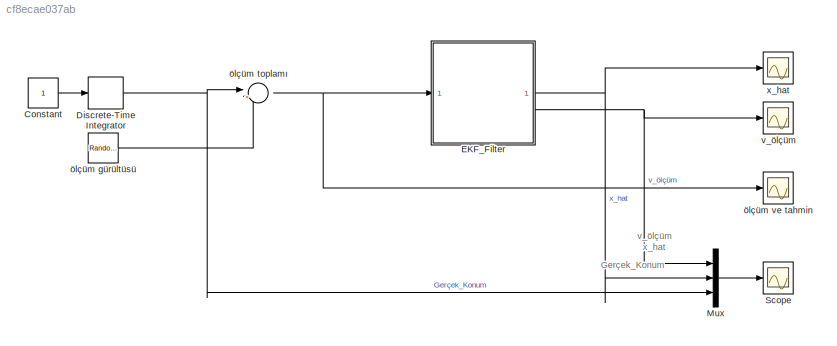
MODEL slx_cf8ecae037ab
KIND model
CONFIG AbsTol = auto
CONFIG EnableMultiTasking = off
CONFIG FixedStep = auto
CONFIG MaxStep = auto
CONFIG MinStep = auto
CONFIG RelTol = 1e-3
CONFIG SampleTimeConstraint = Unconstrained
CONFIG SolverName = VariableStepAuto
CONFIG StartTime = 0.0
CONFIG StopTime = 10.0
BLOCK [Constant] Constant
BLOCK [DiscreteIntegrator] Discrete-Time Integrator
  ICPrevOutput = DiscIntNeverNeededParam
  ICPrevScaledInput = DiscIntNeverNeededParam
  InitialConditionSetting = Auto
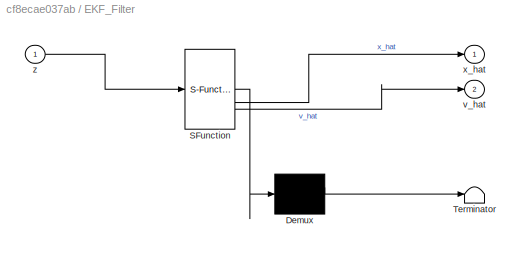
BLOCK [SubSystem] EKF_Filter
  ErrorFcn = Stateflow.Translate.translate
  PermitHierarchicalResolution = ExplicitOnly
  SFBlockType = MATLAB Function
  TreatAsAtomicUnit = on
BLOCK [Demux] EKF_Filter/ Demux 
  Outputs = 1
BLOCK [S-Function] EKF_Filter/ SFunction 
  EnableBusSupport = on
  FunctionName = sf_sfun
  PortCounts = [1 3]
  SFcnIsStateOwnerBlock = off
  SFunctionDeploymentMode = off
  Tag = Stateflow S-Function 2
BLOCK [Terminator] EKF_Filter/ Terminator 
BLOCK [Outport] EKF_Filter/v_hat
  Port = 2
BLOCK [Outport] EKF_Filter/x_hat
BLOCK [Inport] EKF_Filter/z
BLOCK [Mux] Mux
  DisplayOption = bar
  Inputs = 3
BLOCK [Scope] Scope
  Floating = off
  NumInputPorts = 1
  ScopeSpecificationString = Simulink.scopes.TimeScopeBlockCfg('CurrentConfiguration', extmgr.ConfigurationSet(extmgr.Configuration('Core','General UI',true),extmgr.Configuration('Core','Source UI',true),extmgr.Configuration('Sources','WiredSimulink',true,'DataLoggingVariableName','ScopeData3'),extmgr.Configuration('Visuals','Time Domain',true,'SerializedDisplays',{struct('MinYLimReal','-6.33457','MaxYLimReal','15.74706','YLa...<+1519ch>
BLOCK [Scope] v_ölçüm
  Floating = off
  NumInputPorts = 1
  ScopeSpecificationString = Simulink.scopes.TimeScopeBlockCfg('CurrentConfiguration', extmgr.ConfigurationSet(extmgr.Configuration('Core','General UI',true),extmgr.Configuration('Core','Source UI',true),extmgr.Configuration('Sources','WiredSimulink',true,'DataLoggingVariableName','ScopeData2'),extmgr.Configuration('Visuals','Time Domain',true,'SerializedDisplays',{struct('MinYLimReal','-1.87006','MaxYLimReal','3.30513','YLab...<+1455ch>
BLOCK [Scope] x_hat
  Floating = off
  NumInputPorts = 1
  ScopeSpecificationString = Simulink.scopes.TimeScopeBlockCfg('CurrentConfiguration', extmgr.ConfigurationSet(extmgr.Configuration('Core','General UI',true),extmgr.Configuration('Core','Source UI',true),extmgr.Configuration('Sources','WiredSimulink',true,'DataLoggingVariableName','ScopeData1'),extmgr.Configuration('Visuals','Time Domain',true,'SerializedDisplays',{struct('MinYLimReal','-6.33457','MaxYLimReal','15.74706','YLa...<+1457ch>
BLOCK [RandomNumber] ölçüm gürültüsü
  SampleTime = 0.1
  Variance = 30
BLOCK [Sum] ölçüm toplamı
  Inputs = |++
BLOCK [Scope] ölçüm ve tahmin
  Floating = off
  NumInputPorts = 1
  ScopeSpecificationString = Simulink.scopes.TimeScopeBlockCfg('CurrentConfiguration', extmgr.ConfigurationSet(extmgr.Configuration('Core','General UI',true),extmgr.Configuration('Core','Source UI',true),extmgr.Configuration('Sources','WiredSimulink',true),extmgr.Configuration('Visuals','Time Domain',true,'SerializedDisplays',{struct('MinYLimReal','-13.53155','MaxYLimReal','21.56546','YLabelReal','','MinYLimMag','0.00000','Ma...<+1429ch>
ANNOTATION (root): Gerçek_Konum
ANNOTATION (root): v_ölçüm
ANNOTATION (root): x_hat
LINE Constant:1 -> Discrete-Time Integrator:1
NET Discrete-Time Integrator:1 -> Mux:3, ölçüm toplamı:1
NET EKF_Filter:1 -> Mux:2, x_hat:1
NET EKF_Filter:2 -> Mux:1, v_ölçüm:1
LINE Mux:1 -> Scope:1
LINE ölçüm gürültüsü:1 -> ölçüm toplamı:2
NET ölçüm toplamı:1 -> EKF_Filter:1, ölçüm ve tahmin:1
note: NET lines group one-source signal fan-out (src -> all destinations, sorted); 1:1 wires keep LINE
CHART EKF_Filter states=1 transitions=1
  STATE_LABEL 'eML_blk_kernel()'
  STATE_LABEL 'SCRIPT:\nfunction [x_hat, v_hat] = EKF_Filter(z)\n\n% Kalıcı değişkenler\npersistent x P A H Q R\n\nif isempty(x)\n    dt = 1;\n    x = [0; 1];           % Başlangıç: konum=0, hız=1\n    P = eye(2);           % Başlangıç kovaryans\n    A = [1 dt; 0 1];      % Durum geçiş matrisi\n    H = [1 0];            % Ölçüm matrisi\n    Q = 0.01 * eye(2);    % Süreç gürültüsü\n    R = 1;                % Ölçüm gürültüsü\n...<+390ch>'
CHART  states=0 transitions=0
